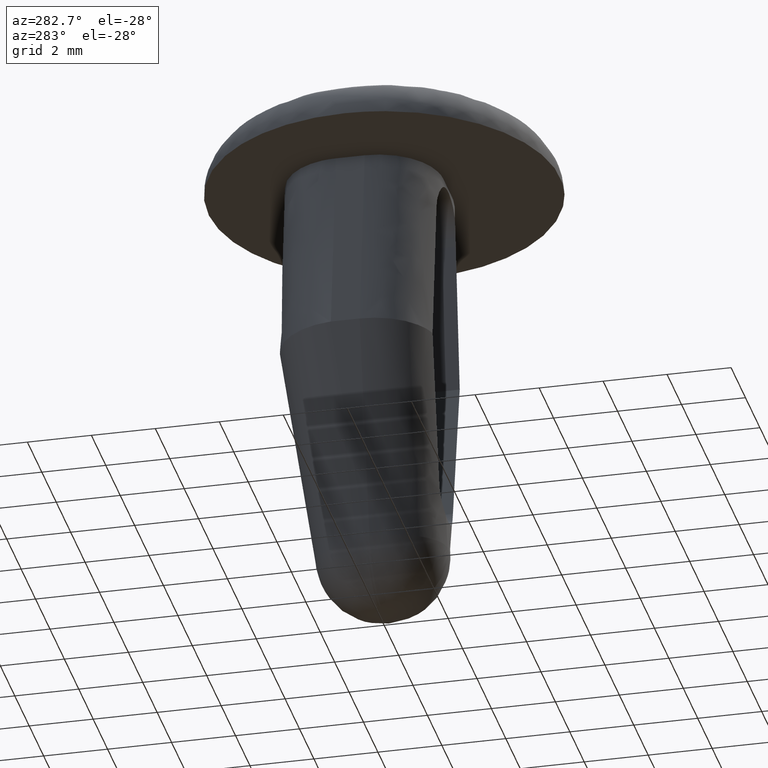
[diagram: clean part render]
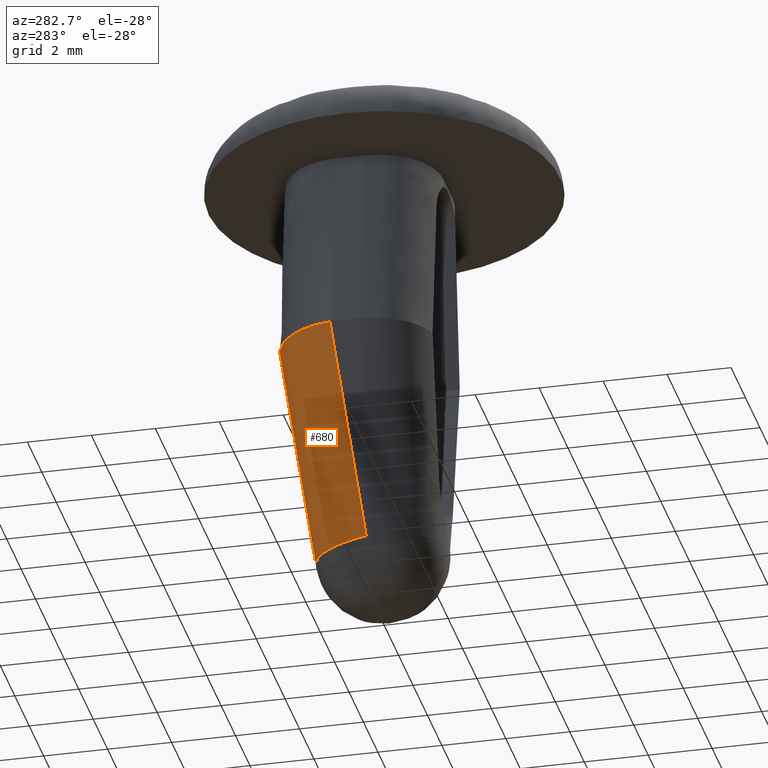
[diagram: same view with one face highlighted and labeled with its STEP entity id]
A machine part, auxiliary view. The second image highlights one B-rep face of the part: STEP entity #680.
In plain terms, the highlighted face is a freeform B-spline surface patch.
Its self-contained STEP definition (entity closure, byte-faithful):
#545=CARTESIAN_POINT('',(-3.399836353955015,0.932279107442337,-6.000836490931850));
#546=VERTEX_POINT('',#545);
#589=CARTESIAN_POINT('',(-1.409293005312132,2.899874587765810,-6.001104989286520));
#590=VERTEX_POINT('',#589);
#604=CARTESIAN_POINT('',(-3.399836353955015,0.932279107442339,-6.000836490931840));
#605=CARTESIAN_POINT('',(-3.398507409406901,1.062533352516714,-6.007588247790633));
#606=CARTESIAN_POINT('',(-3.384459540409346,1.190514531095827,-6.013806359058886));
#607=CARTESIAN_POINT('',(-3.345017214185175,1.379207672349171,-6.022265164200314));
#608=CARTESIAN_POINT('',(-3.328786021991359,1.441555000059453,-6.024939491628837));
#609=CARTESIAN_POINT('',(-3.290010283558141,1.565123498658348,-6.029976587763877));
#610=CARTESIAN_POINT('',(-3.267357231646990,1.626514025703086,-6.032344026579373));
#611=CARTESIAN_POINT('',(-3.191305823604701,1.805007807665865,-6.038801003019119));
#612=CARTESIAN_POINT('',(-3.129570836575675,1.917769063998777,-6.042307629247222));
#613=CARTESIAN_POINT('',(-3.020604454913038,2.077667336969593,-6.046299740275392));
#614=CARTESIAN_POINT('',(-2.981394500311114,2.129582838565185,-6.047420569635188));
#615=CARTESIAN_POINT('',(-2.897907796960050,2.229450886785865,-6.049190679570009));
#616=CARTESIAN_POINT('',(-2.854035540301357,2.276955483991797,-6.049833412622725));
#617=CARTESIAN_POINT('',(-2.716248025340248,2.412427516602062,-6.051029435503204));
#618=CARTESIAN_POINT('',(-2.616217707758192,2.493416727859224,-6.050862211795551));
#619=CARTESIAN_POINT('',(-2.453723529476162,2.600695048400949,-6.048965767824861));
#620=CARTESIAN_POINT('',(-2.397481281257957,2.634009801714073,-6.048053024234773));
#621=CARTESIAN_POINT('',(-2.283246312707176,2.694450951979177,-6.045666927523516));
#622=CARTESIAN_POINT('',(-2.224960361438579,2.721782120368426,-6.044191408998151));
#623=CARTESIAN_POINT('',(-2.106099474292765,2.770778933563284,-6.040618148182436));
#624=CARTESIAN_POINT('',(-2.045524422417937,2.792444372482177,-6.038521433817515));
#625=CARTESIAN_POINT('',(-1.922071555055879,2.830067312067691,-6.033593641368405));
#626=CARTESIAN_POINT('',(-1.858940834165071,2.846072411675917,-6.030751531448400));
#627=CARTESIAN_POINT('',(-1.667880364602280,2.884865698955824,-6.020899400622239));
#628=CARTESIAN_POINT('',(-1.539170296906106,2.898433758007565,-6.012862430967744));
#629=CARTESIAN_POINT('',(-1.409293005312132,2.899874587765810,-6.001104989286520));
#630=B_SPLINE_CURVE_WITH_KNOTS('',3,(#604,#605,#606,#607,#608,#609,#610,#611,#612,#613,#614,#615,#616,#617,#618,#619,#620,#621,#622,#623,#624,#625,#626,#627,#628,#629),.UNSPECIFIED.,.F.,.U.,(4,2,2,2,2,2,2,2,2,2,2,2,4),(0.0,0.125000000000000,0.187500000000000,0.250000000000000,0.375000000000000,0.437500000000000,0.500000000000000,0.625000000000000,0.687500000000000,0.749999999999999,0.812499999999999,0.875000000000000,1.0),.UNSPECIFIED.);
#631=EDGE_CURVE('',#546,#590,#630,.T.);
#636=CARTESIAN_POINT('',(-1.413031346992505,2.942043209344759,-5.648467318194211));
#637=CARTESIAN_POINT('',(-0.000431054112242,2.062556941645467,-12.825240592641361));
#638=CARTESIAN_POINT('',(-3.534651262975452,2.960782447688681,-6.068361008889192));
#639=CARTESIAN_POINT('',(-2.122050970095190,2.081296179989387,-13.245134283336338));
#640=CARTESIAN_POINT('',(-3.437079794105617,0.818576973237786,-5.786636937979643));
#641=CARTESIAN_POINT('',(-2.024479501225353,-0.060909294461508,-12.963410212426785));
#649=(BOUNDED_SURFACE()B_SPLINE_SURFACE(1,2,((#636,#638,#640),(#637,#639,#641)),.UNSPECIFIED.,.F.,.F.,.U.)B_SPLINE_SURFACE_WITH_KNOTS((2,2),(3,3),(0.0,7.367157546526061),(0.0,3.498460812713594),.UNSPECIFIED.)GEOMETRIC_REPRESENTATION_ITEM()RATIONAL_B_SPLINE_SURFACE(((1.0,0.677580666162955,0.996043508340902),(1.0,0.677580666162955,0.996043508340902)))REPRESENTATION_ITEM('')SURFACE());
#650=CARTESIAN_POINT('',(-2.060466227264435,0.098385953294144,-12.805561015660540));
#651=VERTEX_POINT('',#650);
#652=CARTESIAN_POINT('',(-3.399836353955015,0.932279107442337,-6.000836490931850));
#653=CARTESIAN_POINT('',(-2.060466227264435,0.098385953294144,-12.805561015660540));
#654=QUASI_UNIFORM_CURVE('',1,(#652,#653),.UNSPECIFIED.,.F.,.U.);
#655=EDGE_CURVE('',#546,#651,#654,.T.);
#656=ORIENTED_EDGE('',*,*,#655,.F.);
#657=ORIENTED_EDGE('',*,*,#631,.T.);
#658=CARTESIAN_POINT('',(-0.098117512680607,2.083535484864220,-12.662585528279360));
#659=VERTEX_POINT('',#658);
#660=CARTESIAN_POINT('',(-0.098117512680607,2.083535484864220,-12.662585528279360));
#661=CARTESIAN_POINT('',(-1.409293005312132,2.899874587765810,-6.001104989286520));
#662=QUASI_UNIFORM_CURVE('',1,(#660,#661),.UNSPECIFIED.,.F.,.U.);
#663=EDGE_CURVE('',#659,#590,#662,.T.);
#664=ORIENTED_EDGE('',*,*,#663,.F.);
#665=CARTESIAN_POINT('',(-0.098117512680606,2.083535484864220,-12.662585528279360));
#666=CARTESIAN_POINT('',(-2.015426981467741,2.037972877929052,-13.034384965946378));
#667=CARTESIAN_POINT('',(-2.060466227264435,0.098385953294144,-12.805561015660540));
#675=(BOUNDED_CURVE()B_SPLINE_CURVE(2,(#665,#666,#667),.UNSPECIFIED.,.F.,.U.)CURVE()GEOMETRIC_REPRESENTATION_ITEM()QUASI_UNIFORM_CURVE()RATIONAL_B_SPLINE_CURVE((1.0,0.715363844037135,1.0))REPRESENTATION_ITEM(''));
#676=EDGE_CURVE('',#659,#651,#675,.T.);
#677=ORIENTED_EDGE('',*,*,#676,.T.);
#678=EDGE_LOOP('',(#656,#657,#664,#677));
#679=FACE_OUTER_BOUND('',#678,.T.);
#680=ADVANCED_FACE('',(#679),#649,.T.);